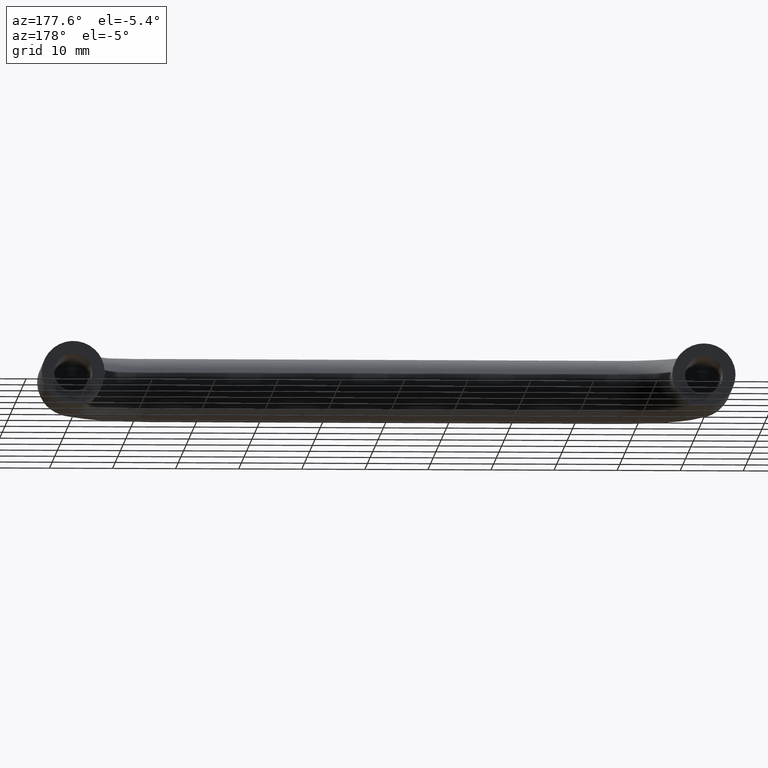
[diagram: clean part render]
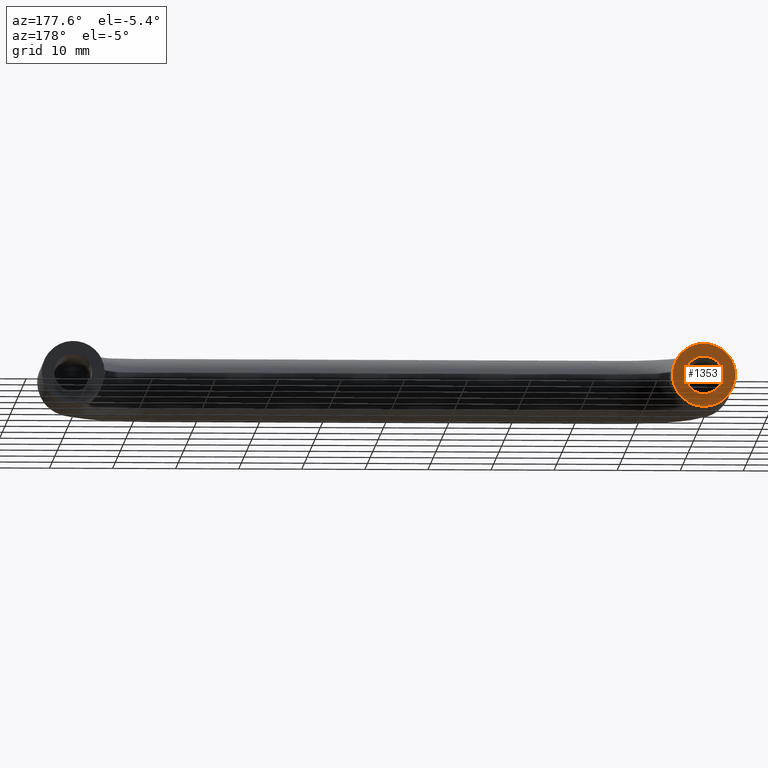
[diagram: same view with one face highlighted and labeled with its STEP entity id]
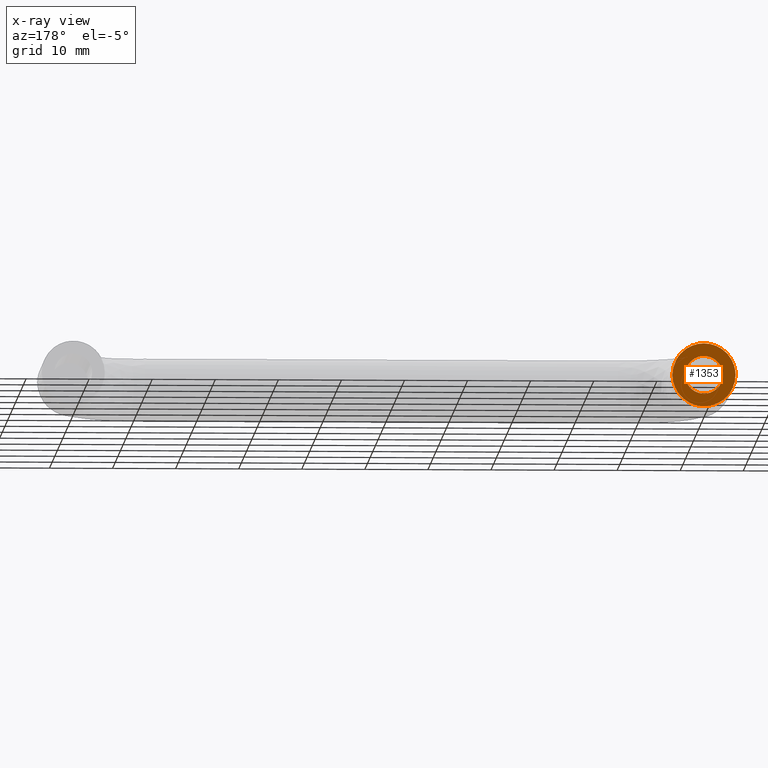
[diagram: x-ray of the same camera — body ghosted, the highlighted face saturated]
A machine part, auxiliary view. The second image highlights one B-rep face of the part: STEP entity #1353.
The next image is the same camera in x-ray: the body ghosted, the highlighted face saturated — about 0% of this face is hidden behind the body in this view.
In plain terms, the highlighted face is a freeform B-spline surface patch.
Its self-contained STEP definition (entity closure, byte-faithful):
#79=CARTESIAN_POINT('',(-2.990752001171563,-8.326673E-017,0.235377287537022));
#80=VERTEX_POINT('',#79);
#86=CARTESIAN_POINT('',(0.0,0.0,3.0));
#87=VERTEX_POINT('',#86);
#88=CARTESIAN_POINT('',(0.0,0.0,3.0));
#89=CARTESIAN_POINT('',(-2.773171474317056,0.0,3.000000000000000));
#90=CARTESIAN_POINT('',(-2.990752001171563,-8.326673E-017,0.235377287537022));
#98=(BOUNDED_CURVE()B_SPLINE_CURVE(2,(#88,#89,#90),.UNSPECIFIED.,.F.,.U.)B_SPLINE_CURVE_WITH_KNOTS((3,3),(0.0,0.236331300592245),.UNSPECIFIED.)CURVE()GEOMETRIC_REPRESENTATION_ITEM()RATIONAL_B_SPLINE_CURVE((1.0,0.723120658652672,0.969723356087248))REPRESENTATION_ITEM(''));
#99=EDGE_CURVE('',#87,#80,#98,.T.);
#101=CARTESIAN_POINT('',(2.990752001171563,-8.326673E-017,-0.235377287537022));
#102=VERTEX_POINT('',#101);
#103=CARTESIAN_POINT('',(2.990752001171563,-8.326673E-017,-0.235377287537022));
#104=CARTESIAN_POINT('',(3.000000000000000,0.0,-0.117870321378136));
#105=CARTESIAN_POINT('',(3.0,0.0,0.0));
#106=CARTESIAN_POINT('',(3.0,0.0,3.0));
#107=CARTESIAN_POINT('',(0.0,0.0,3.0));
#115=(BOUNDED_CURVE()B_SPLINE_CURVE(2,(#103,#104,#105,#106,#107),.UNSPECIFIED.,.F.,.U.)B_SPLINE_CURVE_WITH_KNOTS((3,2,3),(0.736331300592245,0.750000000000000,1.0),.UNSPECIFIED.)CURVE()GEOMETRIC_REPRESENTATION_ITEM()RATIONAL_B_SPLINE_CURVE((0.969723356087248,0.983986122533876,1.0,0.707106781186548,1.0))REPRESENTATION_ITEM(''));
#116=EDGE_CURVE('',#102,#87,#115,.T.);
#192=CARTESIAN_POINT('',(0.0,0.0,-3.0));
#193=VERTEX_POINT('',#192);
#194=CARTESIAN_POINT('',(0.0,0.0,-3.0));
#195=CARTESIAN_POINT('',(2.773171474317065,0.0,-3.0));
#196=CARTESIAN_POINT('',(2.990752001171563,-8.326673E-017,-0.235377287537022));
#204=(BOUNDED_CURVE()B_SPLINE_CURVE(2,(#194,#195,#196),.UNSPECIFIED.,.F.,.U.)B_SPLINE_CURVE_WITH_KNOTS((3,3),(0.500000000000000,0.736331300592245),.UNSPECIFIED.)CURVE()GEOMETRIC_REPRESENTATION_ITEM()RATIONAL_B_SPLINE_CURVE((1.0,0.723120658652671,0.969723356087250))REPRESENTATION_ITEM(''));
#205=EDGE_CURVE('',#193,#102,#204,.T.);
#207=CARTESIAN_POINT('',(-2.990752001171564,-8.326673E-017,0.235377287537022));
#208=CARTESIAN_POINT('',(-3.000000000000000,0.0,0.117870321378135));
#209=CARTESIAN_POINT('',(-3.0,0.0,0.0));
#210=CARTESIAN_POINT('',(-3.0,0.0,-3.0));
#211=CARTESIAN_POINT('',(0.0,0.0,-3.0));
#219=(BOUNDED_CURVE()B_SPLINE_CURVE(2,(#207,#208,#209,#210,#211),.UNSPECIFIED.,.F.,.U.)B_SPLINE_CURVE_WITH_KNOTS((3,2,3),(0.236331300592245,0.250000000000000,0.500000000000000),.UNSPECIFIED.)CURVE()GEOMETRIC_REPRESENTATION_ITEM()RATIONAL_B_SPLINE_CURVE((0.969723356087248,0.983986122533876,1.0,0.707106781186548,1.0))REPRESENTATION_ITEM(''));
#220=EDGE_CURVE('',#80,#193,#219,.T.);
#905=CARTESIAN_POINT('',(2.421098661285238,6.025501E-017,-4.374732137208268));
#906=VERTEX_POINT('',#905);
#912=CARTESIAN_POINT('',(5.0,0.0,0.0));
#913=VERTEX_POINT('',#912);
#914=CARTESIAN_POINT('',(2.421098661285238,6.025501E-017,-4.374732137208268));
#915=CARTESIAN_POINT('',(5.0,0.0,-2.947496278425284));
#916=CARTESIAN_POINT('',(5.0,0.0,0.0));
#924=(BOUNDED_CURVE()B_SPLINE_CURVE(2,(#914,#915,#916),.UNSPECIFIED.,.F.,.U.)B_SPLINE_CURVE_WITH_KNOTS((3,3),(0.332484288971580,0.500000000000000),.UNSPECIFIED.)CURVE()GEOMETRIC_REPRESENTATION_ITEM()RATIONAL_B_SPLINE_CURVE((0.870495137452209,0.803743136780247,1.0))REPRESENTATION_ITEM(''));
#925=EDGE_CURVE('',#906,#913,#924,.T.);
#927=CARTESIAN_POINT('',(3.686388270127679,1.110223E-016,3.377949307177291));
#928=VERTEX_POINT('',#927);
#929=CARTESIAN_POINT('',(5.0,0.0,0.0));
#930=CARTESIAN_POINT('',(5.0,0.0,1.944392307902128));
#931=CARTESIAN_POINT('',(3.686388270127680,1.110223E-016,3.377949307177292));
#939=(BOUNDED_CURVE()B_SPLINE_CURVE(2,(#929,#930,#931),.UNSPECIFIED.,.F.,.U.)B_SPLINE_CURVE_WITH_KNOTS((3,3),(0.500000000000000,0.618415138202460),.UNSPECIFIED.)CURVE()GEOMETRIC_REPRESENTATION_ITEM()RATIONAL_B_SPLINE_CURVE((1.0,0.861268036062567,0.853959789587132))REPRESENTATION_ITEM(''));
#940=EDGE_CURVE('',#913,#928,#939,.T.);
#1050=CARTESIAN_POINT('',(-5.0,0.0,0.0));
#1051=VERTEX_POINT('',#1050);
#1052=CARTESIAN_POINT('',(3.686388270127680,1.110223E-016,3.377949307177292));
#1053=CARTESIAN_POINT('',(2.200054055572904,0.0,5.000000000000001));
#1054=CARTESIAN_POINT('',(0.0,0.0,5.0));
#1055=CARTESIAN_POINT('',(-5.000000000000001,0.0,5.000000000000001));
#1056=CARTESIAN_POINT('',(-5.0,0.0,0.0));
#1064=(BOUNDED_CURVE()B_SPLINE_CURVE(2,(#1052,#1053,#1054,#1055,#1056),.UNSPECIFIED.,.F.,.U.)B_SPLINE_CURVE_WITH_KNOTS((3,2,3),(0.618415138202460,0.750000000000000,1.0),.UNSPECIFIED.)CURVE()GEOMETRIC_REPRESENTATION_ITEM()RATIONAL_B_SPLINE_CURVE((0.853959789587132,0.845838745123980,1.0,0.707106781186548,1.0))REPRESENTATION_ITEM(''));
#1065=EDGE_CURVE('',#928,#1051,#1064,.T.);
#1067=CARTESIAN_POINT('',(-5.0,0.0,0.0));
#1068=CARTESIAN_POINT('',(-5.000000000000001,0.0,-5.000000000000001));
#1069=CARTESIAN_POINT('',(0.0,0.0,-5.0));
#1070=CARTESIAN_POINT('',(1.291289514124439,0.0,-5.000000000000001));
#1071=CARTESIAN_POINT('',(2.421098661285238,6.025501E-017,-4.374732137208268));
#1079=(BOUNDED_CURVE()B_SPLINE_CURVE(2,(#1067,#1068,#1069,#1070,#1071),.UNSPECIFIED.,.F.,.U.)B_SPLINE_CURVE_WITH_KNOTS((3,2,3),(0.0,0.250000000000000,0.332484288971580),.UNSPECIFIED.)CURVE()GEOMETRIC_REPRESENTATION_ITEM()RATIONAL_B_SPLINE_CURVE((1.0,0.707106781186548,1.0,0.903363644406300,0.870495137452209))REPRESENTATION_ITEM(''));
#1080=EDGE_CURVE('',#1051,#906,#1079,.T.);
#1336=CARTESIAN_POINT('',(5.499499980618060,0.0,-5.498235417388205));
#1337=CARTESIAN_POINT('',(-5.499500248838961,0.0,-5.498235417388205));
#1338=CARTESIAN_POINT('',(5.499499980618060,0.0,5.497225208066229));
#1339=CARTESIAN_POINT('',(-5.499500248838961,0.0,5.497225208066229));
#1340=B_SPLINE_SURFACE_WITH_KNOTS('',1,1,((#1336,#1338),(#1337,#1339)),.UNSPECIFIED.,.F.,.F.,.U.,(2,2),(2,2),(0.0,10.999000229457019),(0.0,10.995460625454429),.UNSPECIFIED.);
#1341=ORIENTED_EDGE('',*,*,#1065,.F.);
#1342=ORIENTED_EDGE('',*,*,#940,.F.);
#1343=ORIENTED_EDGE('',*,*,#925,.F.);
#1344=ORIENTED_EDGE('',*,*,#1080,.F.);
#1345=EDGE_LOOP('',(#1341,#1342,#1343,#1344));
#1346=FACE_OUTER_BOUND('',#1345,.T.);
#1347=ORIENTED_EDGE('',*,*,#205,.T.);
#1348=ORIENTED_EDGE('',*,*,#116,.T.);
#1349=ORIENTED_EDGE('',*,*,#99,.T.);
#1350=ORIENTED_EDGE('',*,*,#220,.T.);
#1351=EDGE_LOOP('',(#1347,#1348,#1349,#1350));
#1352=FACE_BOUND('',#1351,.T.);
#1353=ADVANCED_FACE('',(#1346,#1352),#1340,.T.);